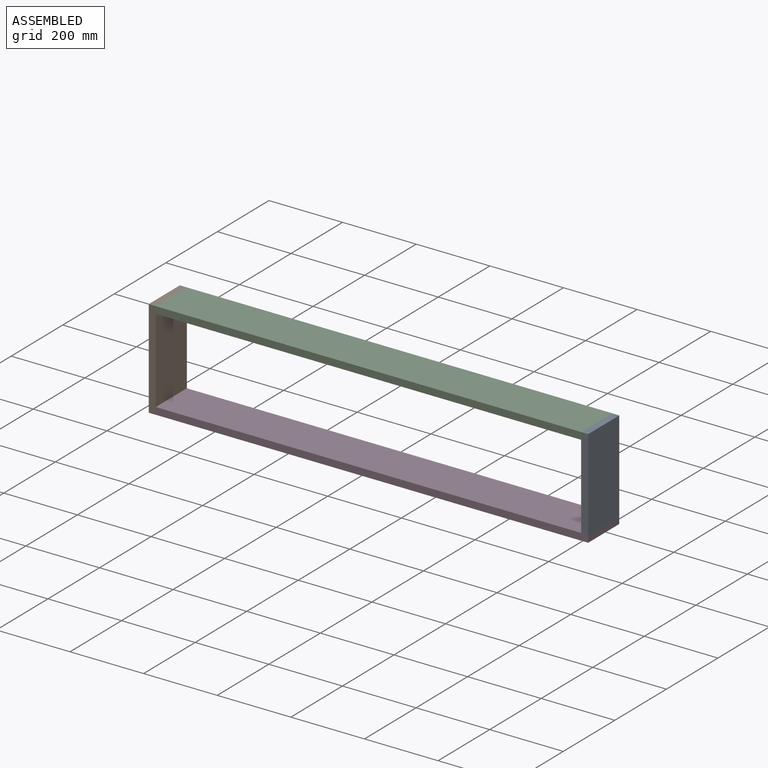
[diagram: assembled view]
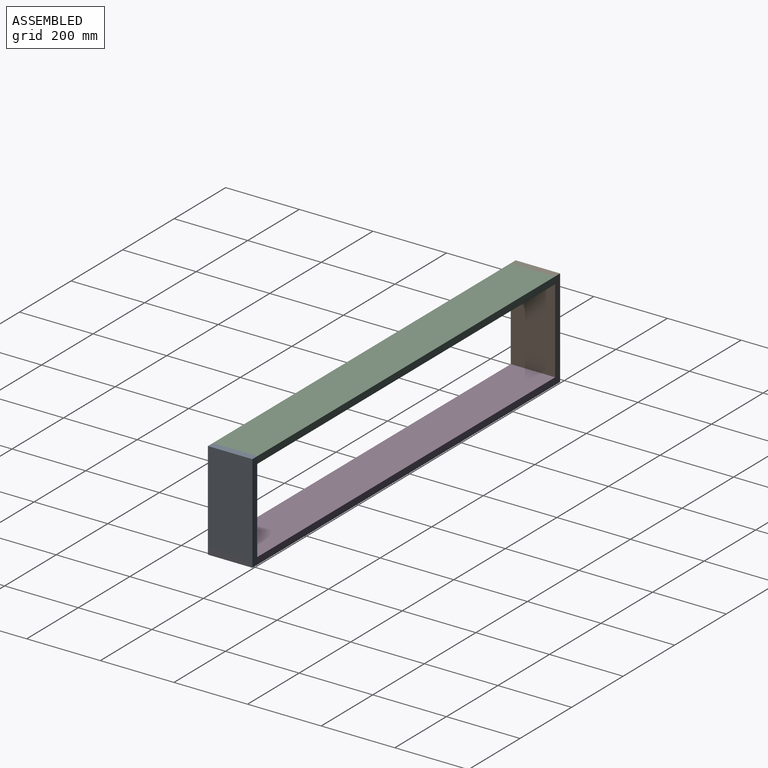
[diagram: assembled view, second angle]
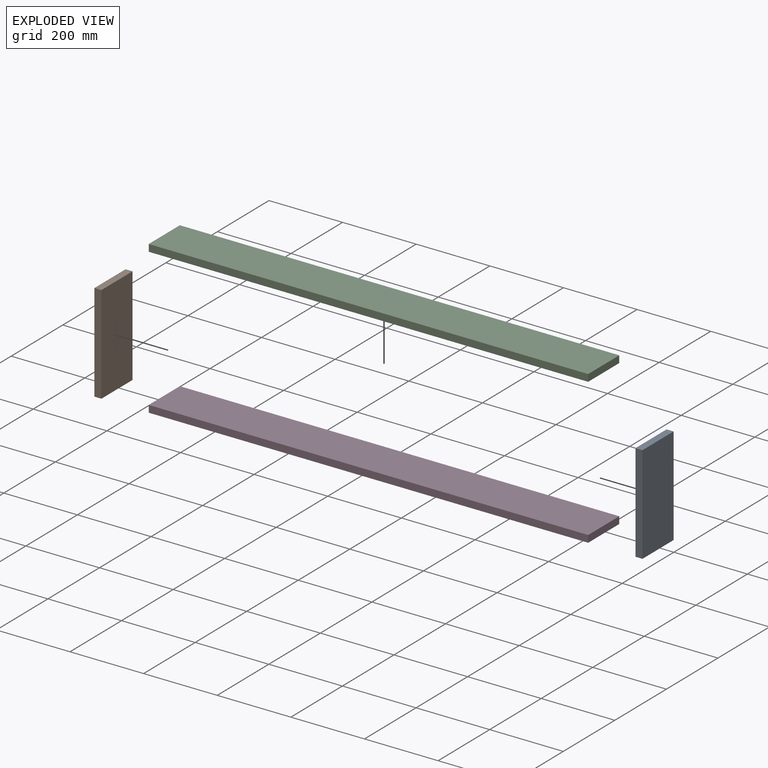
[diagram: exploded view]
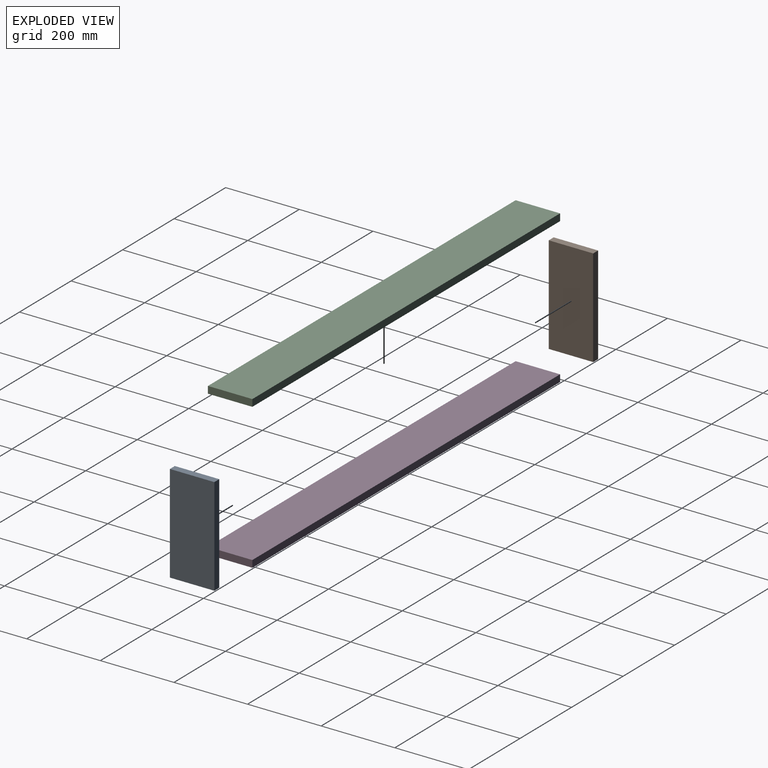
[diagram: exploded view, second angle]
ASSEMBLY  parts=4 mates=3
PART A: 6 faces, bbox 19.1x120.7x266.7 mm
  f0: plane 266.7x19.05mm, normal (0,1,0), area 5080.6mm2, adj f1,f3,f4,f5
  f1: plane 120.65x19.05mm, normal (0,0,1), area 2298.4mm2, adj f0,f2,f4,f5
  f2: plane 266.7x19.05mm, normal (0,-1,0), area 5080.6mm2, adj f1,f3,f4,f5
  f3: plane 120.65x19.05mm, normal (0,0,-1), area 2298.4mm2, adj f0,f2,f4,f5
  f4: plane 266.7x120.65mm, normal (1,0,0), area 32177.4mm2, adj f0,f1,f2,f3
  f5: plane 266.7x120.65mm, normal (-1,0,0), area 32177.4mm2, adj f0,f1,f2,f3
PART B: same geometry as A
PART C: 6 faces, bbox 1193.8x120.7x19.1 mm
  f0: plane 120.65x19.05mm, normal (1,0,0), area 2298.4mm2, adj f1,f3,f4,f5
  f1: plane 1193.8x19.05mm, normal (0,1,0), area 22741.9mm2, adj f0,f2,f4,f5
  f2: plane 120.65x19.05mm, normal (-1,0,0), area 2298.4mm2, adj f1,f3,f4,f5
  f3: plane 1193.8x19.05mm, normal (0,-1,0), area 22741.9mm2, adj f0,f2,f4,f5
  f4: plane 1193.8x120.65mm, normal (0,0,1), area 144032mm2, adj f0,f1,f2,f3
  f5: plane 1193.8x120.65mm, normal (0,0,-1), area 144032mm2, adj f0,f1,f2,f3
PART D: same geometry as C
PLACE A t=(619.12,-40.65,-220.54)mm
PLACE B t=(-555.63,-40.65,-220.54)mm
PLACE C t=(41.27,-40.65,-106.24)mm fixed
PLACE D t=(41.27,-40.65,-353.89)mm
MATE fastened A.f4 <-> C.f0  axis (1,0,0) through (638.17,19.68,-87.19)mm
MATE fastened B.f5 <-> C.f2  axis (-1,0,0) through (-555.63,19.68,-87.19)mm
MATE fastened D.f2 <-> B.f5  axis (-1,0,0) through (-555.63,19.68,-353.89)mm
